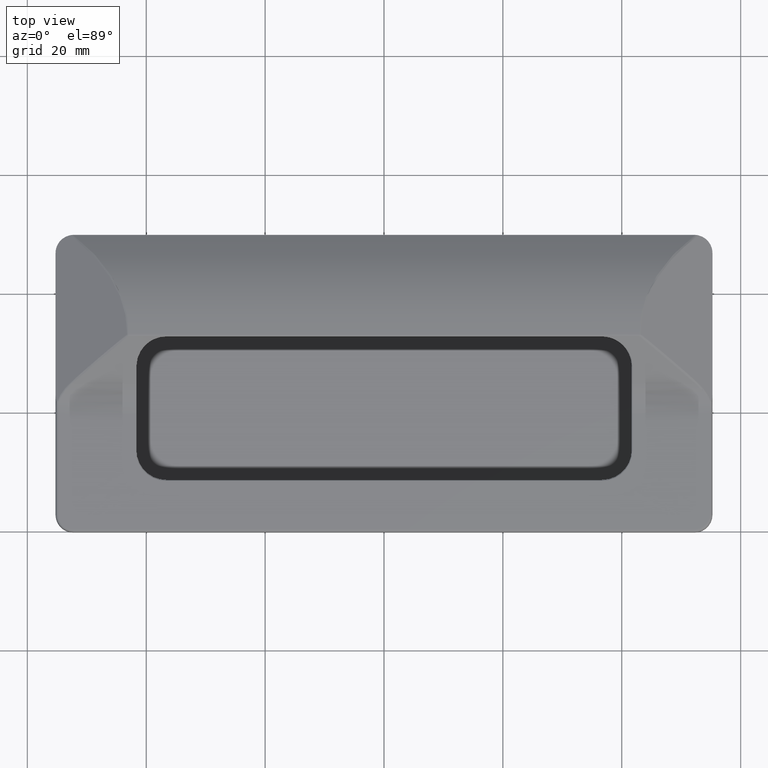
[diagram: clean part render]
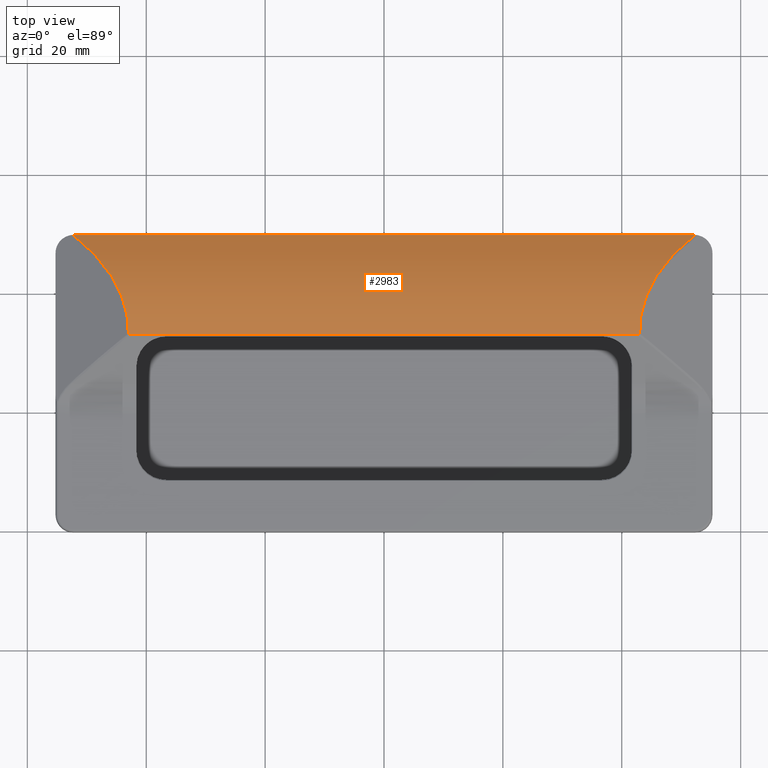
[diagram: same view with one face highlighted and labeled with its STEP entity id]
A machine part, top view. The second image highlights one B-rep face of the part: STEP entity #2983.
In plain terms, the highlighted cylindrical surface (partial cylindrical patch) has radius 27.1715 mm, axis along (1, 0, 0).
Its self-contained STEP definition (entity closure, byte-faithful):
#137=ELLIPSE('',#3244,53.5948343055961,27.1715425206513);
#138=ELLIPSE('',#3245,53.5948343055961,27.1715425206513);
#223=LINE('',#5060,#461);
#224=LINE('',#5069,#462);
#461=VECTOR('',#3826,85.9726653551561);
#462=VECTOR('',#3829,104.5);
#648=CYLINDRICAL_SURFACE('',#3243,27.1715425206513);
#775=FACE_OUTER_BOUND('',#959,.T.);
#959=EDGE_LOOP('',(#2316,#2317,#2318,#2319,#2320,#2321));
#1100=B_SPLINE_CURVE_WITH_KNOTS('',3,(#5064,#5065,#5066,#5067),
 .UNSPECIFIED.,.F.,.F.,(4,4),(0.975494777226988,0.984531479012091),
 .UNSPECIFIED.);
#1101=B_SPLINE_CURVE_WITH_KNOTS('',3,(#5071,#5072,#5073,#5074),
 .UNSPECIFIED.,.F.,.F.,(4,4),(0.975494777226988,0.984531479012091),
 .UNSPECIFIED.);
#1396=VERTEX_POINT('',#5058);
#1397=VERTEX_POINT('',#5059);
#1398=VERTEX_POINT('',#5061);
#1399=VERTEX_POINT('',#5063);
#1400=VERTEX_POINT('',#5068);
#1401=VERTEX_POINT('',#5070);
#1741=EDGE_CURVE('',#1396,#1397,#223,.T.);
#1742=EDGE_CURVE('',#1398,#1396,#137,.T.);
#1743=EDGE_CURVE('',#1399,#1398,#1100,.T.);
#1744=EDGE_CURVE('',#1400,#1399,#224,.T.);
#1745=EDGE_CURVE('',#1400,#1401,#1101,.T.);
#1746=EDGE_CURVE('',#1401,#1397,#138,.T.);
#2316=ORIENTED_EDGE('',*,*,#1741,.F.);
#2317=ORIENTED_EDGE('',*,*,#1742,.F.);
#2318=ORIENTED_EDGE('',*,*,#1743,.F.);
#2319=ORIENTED_EDGE('',*,*,#1744,.F.);
#2320=ORIENTED_EDGE('',*,*,#1745,.T.);
#2321=ORIENTED_EDGE('',*,*,#1746,.T.);
#2983=ADVANCED_FACE('',(#775),#648,.T.);
#3243=AXIS2_PLACEMENT_3D('',#5057,#3824,#3825);
#3244=AXIS2_PLACEMENT_3D('',#5062,#3827,#3828);
#3245=AXIS2_PLACEMENT_3D('',#5075,#3830,#3831);
#3824=DIRECTION('center_axis',(1.,0.,0.));
#3825=DIRECTION('ref_axis',(0.,0.603533500453609,0.797337641046886));
#3826=DIRECTION('',(-1.,0.,0.));
#3827=DIRECTION('center_axis',(0.506980623649661,0.,0.861957450947436));
#3828=DIRECTION('ref_axis',(-0.861957450947436,0.,0.50698062364966));
#3829=DIRECTION('',(1.,0.,0.));
#3830=DIRECTION('center_axis',(0.506980623649661,0.,-0.861957450947436));
#3831=DIRECTION('ref_axis',(0.861957450947436,0.,0.50698062364966));
#5057=CARTESIAN_POINT('Origin',(0.,33.6010638297872,-20.1648936170213));
#5058=CARTESIAN_POINT('',(42.9863326775781,33.1566625426524,7.00301448146056));
#5059=CARTESIAN_POINT('',(-42.9863326775781,33.1566625426524,7.00301448146056));
#5060=CARTESIAN_POINT('',(0.,33.1566625426524,7.00301448146056));
#5061=CARTESIAN_POINT('',(52.3406746593471,49.9986293712548,1.50103740993213));
#5062=CARTESIAN_POINT('Origin',(89.1766202739022,33.6010638297872,-20.1648936170213));
#5063=CARTESIAN_POINT('',(52.25,50.,1.50000000000001));
#5064=CARTESIAN_POINT('Ctrl Pts',(52.25,50.,1.5));
#5065=CARTESIAN_POINT('Ctrl Pts',(52.2801223392837,50.,1.5));
#5066=CARTESIAN_POINT('Ctrl Pts',(52.3103573680662,49.9995461267851,1.50034357596731));
#5067=CARTESIAN_POINT('Ctrl Pts',(52.3406746593471,49.9986293712549,1.5010374099352));
#5068=CARTESIAN_POINT('',(-52.25,50.,1.50000000000001));
#5069=CARTESIAN_POINT('',(0.,50.,1.50000000000001));
#5070=CARTESIAN_POINT('',(-52.3406746593471,49.9986293712548,1.50103740993213));
#5071=CARTESIAN_POINT('Ctrl Pts',(-52.25,50.,1.5));
#5072=CARTESIAN_POINT('Ctrl Pts',(-52.2801223392837,50.,1.5));
#5073=CARTESIAN_POINT('Ctrl Pts',(-52.3103573680662,49.9995461267851,1.50034357596731));
#5074=CARTESIAN_POINT('Ctrl Pts',(-52.3406746593471,49.9986293712549,1.5010374099352));
#5075=CARTESIAN_POINT('Origin',(-89.1766202739022,33.6010638297872,-20.1648936170213));